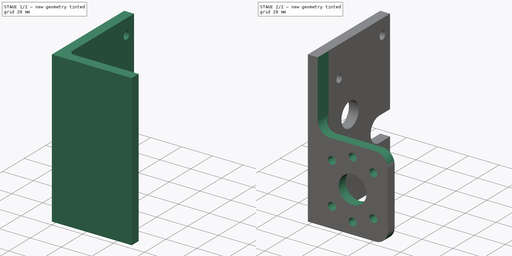
[diagram: build sequence overview — one tinted view per stage of 2, left to right]
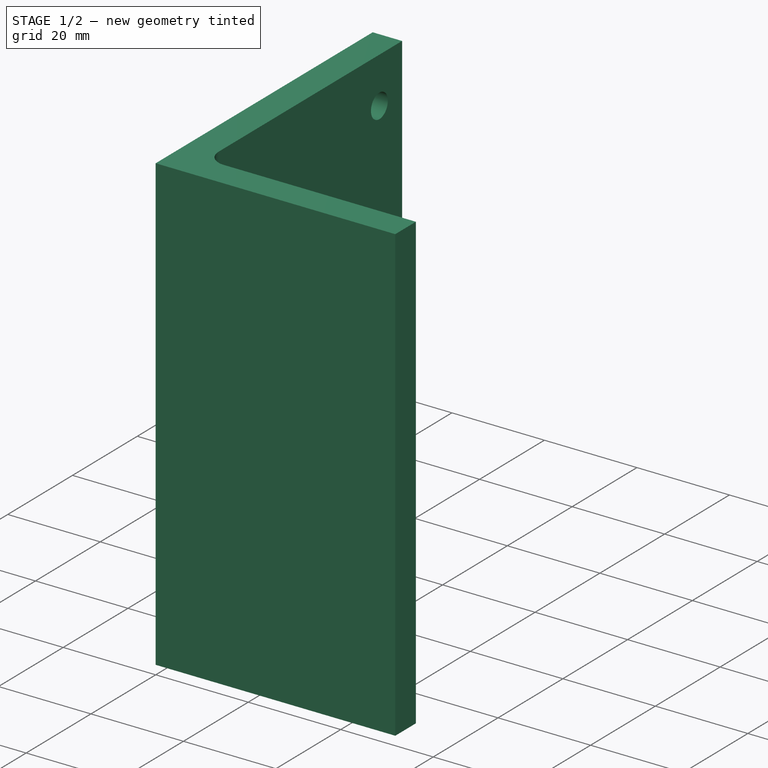
[diagram: stage 1 of 2 — iso view after this stage's code; geometry added in this stage tinted green]
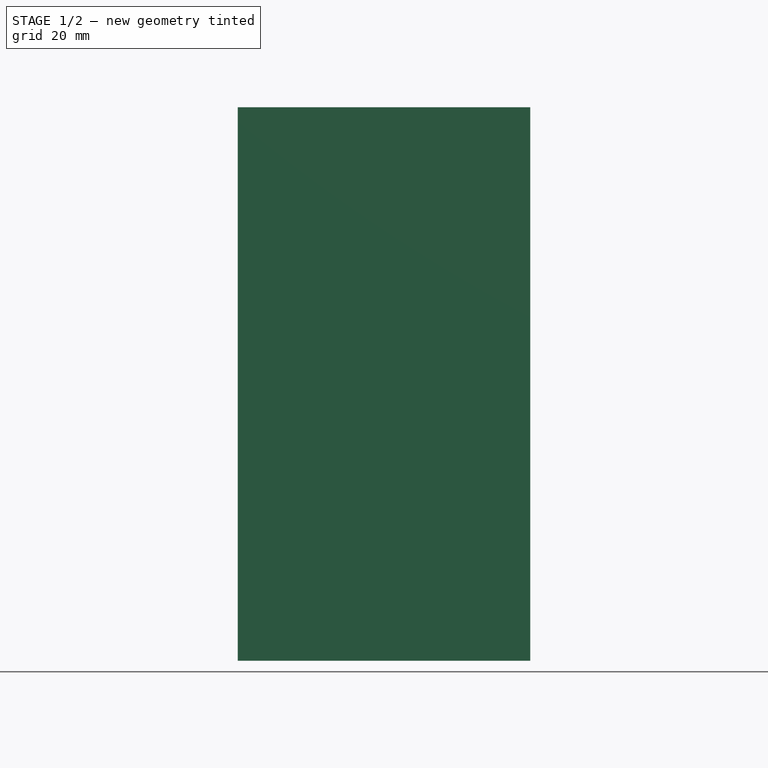
[diagram: stage 1 of 2 — front view after this stage's code; geometry added in this stage tinted green]
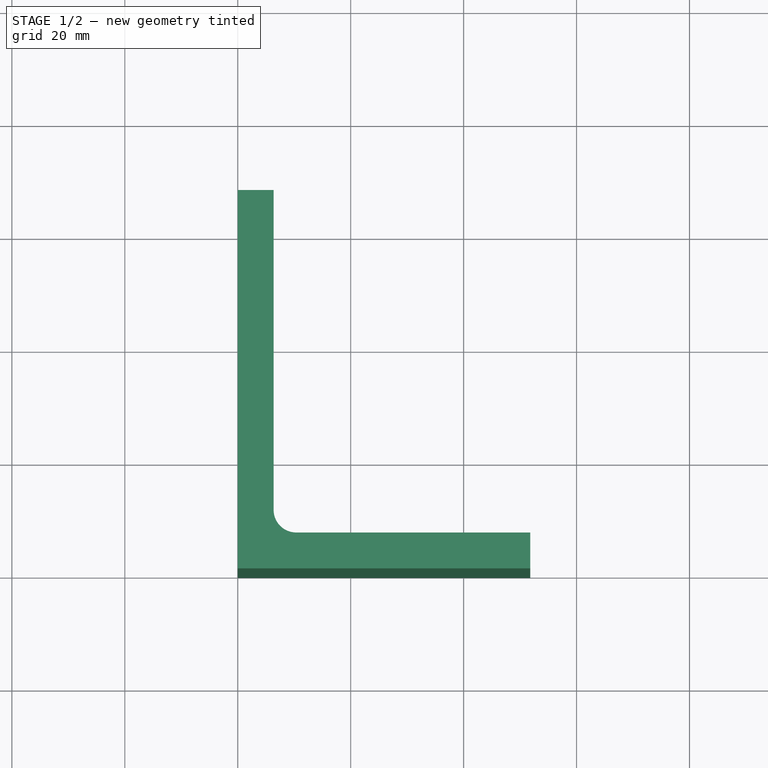
[diagram: stage 1 of 2 — top view after this stage's code; geometry added in this stage tinted green]
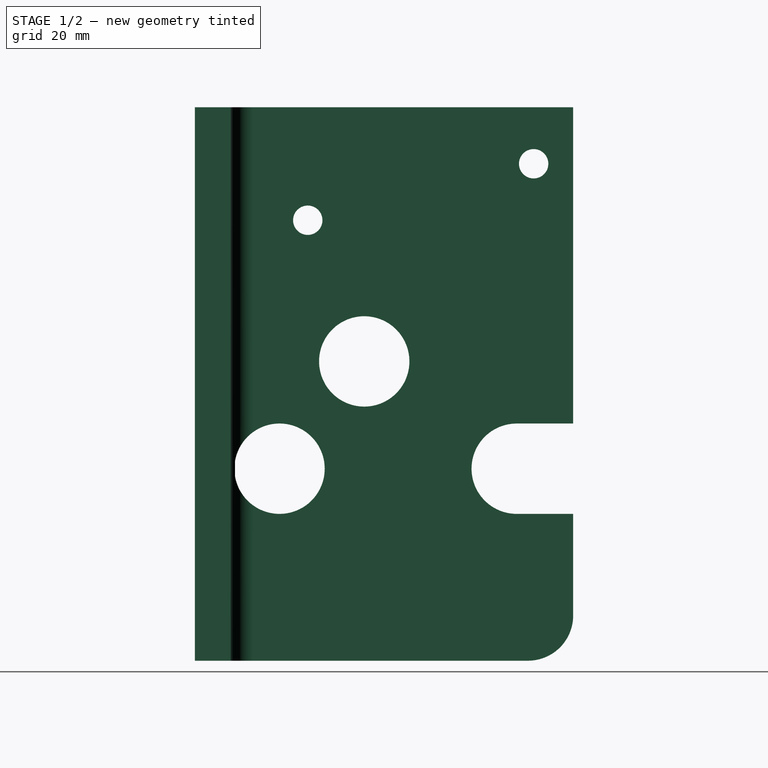
[diagram: stage 1 of 2 — right view after this stage's code; geometry added in this stage tinted green]
FCSTD DOCUMENT  (FreeCAD 0.16R6703 (Git))
Label: Worm-support-32-new
License: All rights reserved
LicenseURL: http://en.wikipedia.org/wiki/All_rights_reserved
objects: Sketcher::SketchObject×3, PartDesign::Pocket×2, PartDesign::Pad×1
note: 9 computed .brp shape members not serialized (recipe doc carries the construction recipe); baked Part::Feature solids carry a one-line shape summary decoded from their .brp

FEATURE [Sketcher::SketchObject] Sketch
  sketch-geometry (7):
    g0: LineSegment StartX=6.35 StartY=10.35 StartZ=0 EndX=6.35 EndY=67 EndZ=0
    g1: LineSegment StartX=6.35 StartY=67 StartZ=0 EndX=0 EndY=67 EndZ=0
    g2: LineSegment StartX=0 StartY=67 StartZ=0 EndX=0 EndY=0 EndZ=0
    g3: LineSegment StartX=0 StartY=0 StartZ=0 EndX=51.8 EndY=0 EndZ=0
    g4: LineSegment StartX=51.8 StartY=0 StartZ=0 EndX=51.8 EndY=6.35 EndZ=0
    g5: LineSegment StartX=51.8 StartY=6.35 StartZ=0 EndX=10.35 EndY=6.35 EndZ=0
    g6: ArcOfCircle CenterX=10.35 CenterY=10.35 CenterZ=0 NormalX=0 NormalY=0 NormalZ=1 Radius=4 StartAngle=3.14159 EndAngle=4.71239
  constraints (21):
    c: Vertical(g0)
    c: Coincident(g0,g1)
    c: Horizontal(g1)
    c: Coincident(g1,g2)
    c: Coincident(g2,g-1)
    c: Vertical(g2)
    c: Coincident(g2,g3)
    c: Horizontal(g3)
    c: Coincident(g3,g4)
    c: Vertical(g4)
    c: Coincident(g4,g5)
    c: Horizontal(g5)
    c: Coincident(g6,g5)
    c: Tangent(g6,g5)
    c: Coincident(g6,g0)
    c: Tangent(g6,g0)
    c: Radius(g6) = 4
    c: DistanceY(g4) = 6.35
    c: DistanceX(g3) = 51.8
    c: DistanceX(g1,g0) = 6.35
    c: DistanceY(g-1,g1) = 67
FEATURE [PartDesign::Pad] Pad001
  Length = 98
  Length2 = 100
  Sketch = -> Sketch
  Type = 0
FEATURE [Sketcher::SketchObject] Sketch001
  Placement = pos=(0,0,0) rot=(0.57735,-0.57735,-0.57735;2.0944rad)
  Support = -> Pad001 [Face3]
  sketch-geometry (11):
    g0: Circle CenterX=-60 CenterY=88 CenterZ=0 NormalX=0 NormalY=0 NormalZ=1 Radius=2.6
    g1: Circle CenterX=-20 CenterY=78 CenterZ=0 NormalX=0 NormalY=0 NormalZ=1 Radius=2.6
    g2: Circle CenterX=-30 CenterY=53 CenterZ=0 NormalX=0 NormalY=0 NormalZ=1 Radius=8
    g3: Circle CenterX=-15 CenterY=34 CenterZ=0 NormalX=0 NormalY=0 NormalZ=1 Radius=8
    g4: LineSegment StartX=-68 StartY=0 StartZ=0 EndX=-68 EndY=42 EndZ=0
    g5: LineSegment StartX=-68 StartY=42 StartZ=0 EndX=-57 EndY=42 EndZ=0
    g6: ArcOfCircle CenterX=-57 CenterY=34 CenterZ=0 NormalX=0 NormalY=0 NormalZ=1 Radius=8 StartAngle=4.71239 EndAngle=7.85398
    g7: ArcOfCircle CenterX=-59 CenterY=8 CenterZ=0 NormalX=0 NormalY=0 NormalZ=1 Radius=8 StartAngle=3.14159 EndAngle=4.71239
    g8: LineSegment StartX=-67 StartY=26 StartZ=0 EndX=-57 EndY=26 EndZ=0
    g9: LineSegment StartX=-67 StartY=26 StartZ=0 EndX=-67 EndY=7.99999 EndZ=0
    g10: LineSegment StartX=-68 StartY=0 StartZ=0 EndX=-59 EndY=0 EndZ=0
  constraints (35):
    c: Radius(g2) = 8
    c: DistanceX(g0,g1) = 40
    c: Equal(g1,g0)
    c: Radius(g0) = 2.6
    c: DistanceX(g-1,g1) = -20
    c: DistanceY(g-1,g1) = 78
    c: DistanceY(g-1,g0) = 88
    c: Radius(g3) = 8
    c: DistanceX(g-1,g3) = -15
    c: DistanceY(g-1,g2) = 53
    c: DistanceX(g-1,g2) = -30
    c: DistanceY(g-1,g3) = 34
    c: Vertical(g4)
    c: Coincident(g4,g5)
    c: Horizontal(g5)
    c: Coincident(g5,g6)
    c: Tangent(g5,g6)
    c: Radius(g6) = 8
    c: DistanceX(g3,g6) = -42
    c: DistanceX(g-1,g4) = -68
    c: DistanceY(g-1,g6) = 34
    c: Angle(g6) = 3.14159
    c: PointOnObject(g7,g-1)
    c: Horizontal(g8)
    c: DistanceX(g7,g-1) = 67
    c: Angle(g7) = 1.5708
    c: Coincident(g8,g6)
    c: Radius(g7) = 8
    c: Vertical(g9)
    c: Horizontal(g10)
    c: Coincident(g10,g7)
    c: Coincident(g10,g4)
    c: Coincident(g9,g7)
    c: Tangent(g7,g9)
    c: Coincident(g9,g8)
FEATURE [PartDesign::Pocket] Pocket
  Length = 8
  Sketch = -> Sketch001
  Type = 0
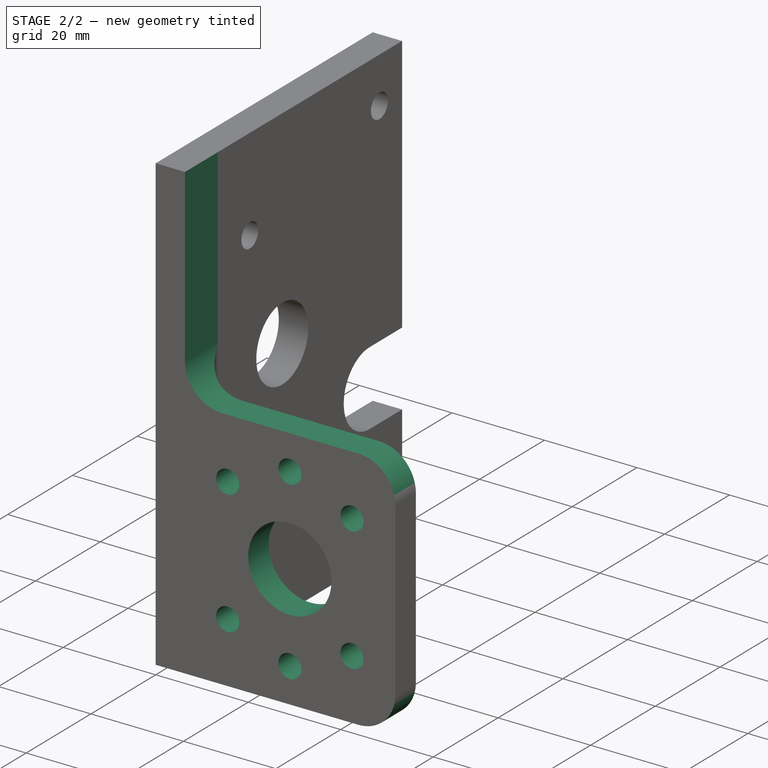
[diagram: stage 2 of 2 — iso view after this stage's code; geometry added in this stage tinted green]
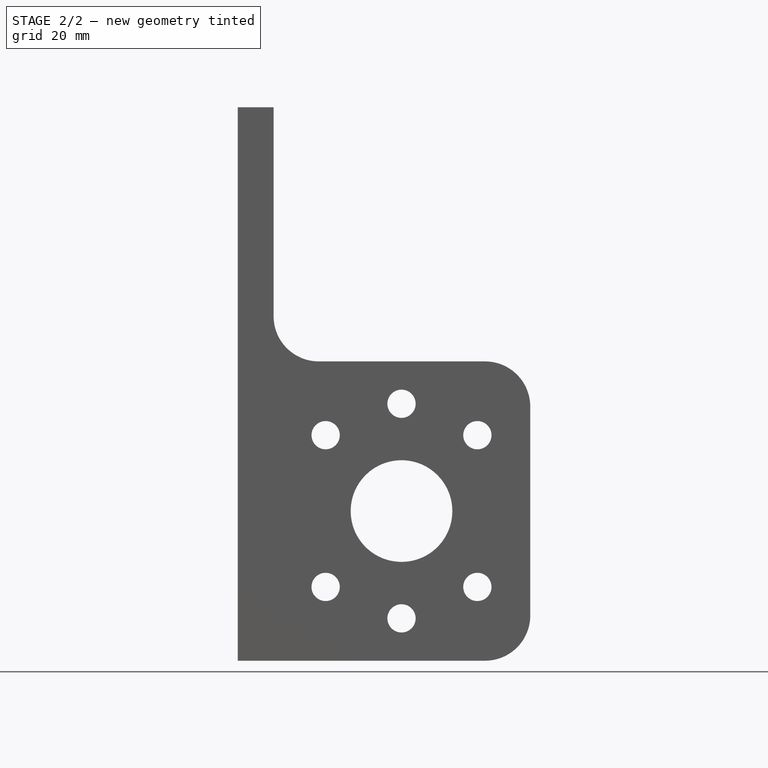
[diagram: stage 2 of 2 — front view after this stage's code; geometry added in this stage tinted green]
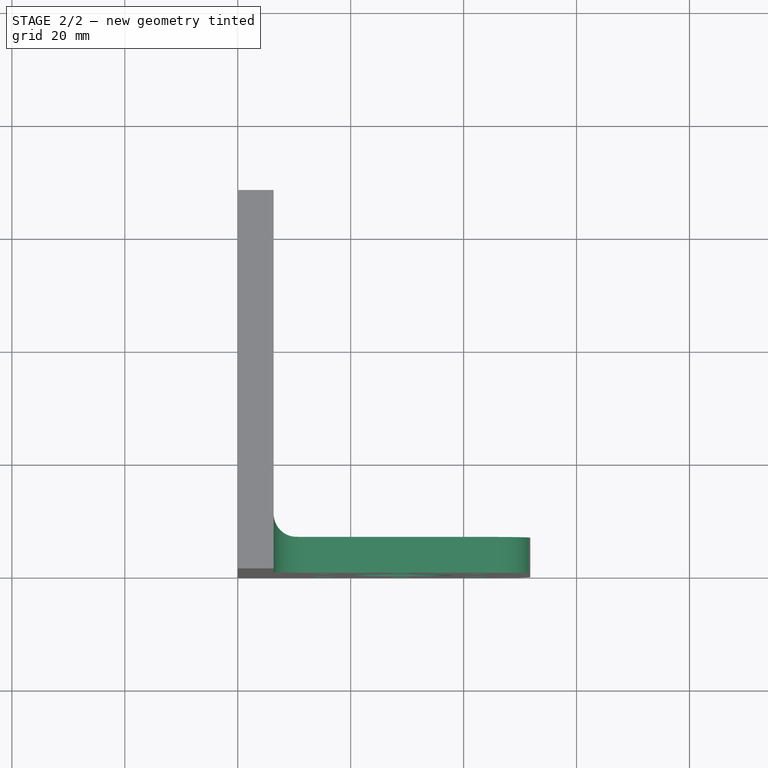
[diagram: stage 2 of 2 — top view after this stage's code; geometry added in this stage tinted green]
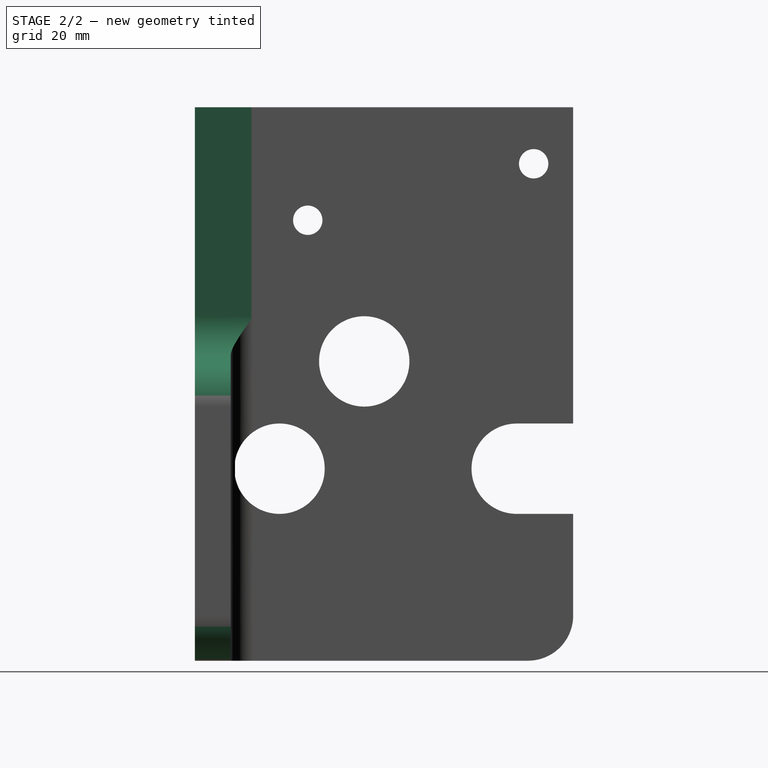
[diagram: stage 2 of 2 — right view after this stage's code; geometry added in this stage tinted green]
FEATURE [Sketcher::SketchObject] Sketch002
  Placement = pos=(0,0,0) rot=(1,0,0;1.5708rad)
  Support = -> Pocket [Face16]
  sketch-geometry (21):
    g0: Circle [constr] CenterX=29 CenterY=26.5 CenterZ=0 NormalX=0 NormalY=0 NormalZ=1 Radius=19
    g1: Circle CenterX=29 CenterY=26.5 CenterZ=0 NormalX=0 NormalY=0 NormalZ=1 Radius=9
    g2: LineSegment [constr] StartX=0 StartY=55.5 StartZ=0 EndX=37.4767 EndY=18.0233 EndZ=0
    g3: LineSegment [constr] StartX=2.5 StartY=0 StartZ=0 EndX=39.9767 EndY=37.4767 EndZ=0
    g4: LineSegment [constr] StartX=29 StartY=0 StartZ=0 EndX=29 EndY=53 EndZ=0
    g5: Circle CenterX=15.565 CenterY=39.935 CenterZ=0 NormalX=0 NormalY=0 NormalZ=1 Radius=2.5
    g6: Circle CenterX=29 CenterY=45.5 CenterZ=0 NormalX=0 NormalY=0 NormalZ=1 Radius=2.5
    g7: Circle CenterX=42.435 CenterY=39.935 CenterZ=0 NormalX=0 NormalY=0 NormalZ=1 Radius=2.5
    g8: Circle CenterX=15.565 CenterY=13.065 CenterZ=0 NormalX=0 NormalY=0 NormalZ=1 Radius=2.5
    g9: Circle CenterX=29 CenterY=7.5 CenterZ=0 NormalX=0 NormalY=0 NormalZ=1 Radius=2.5
    g10: Circle CenterX=42.435 CenterY=13.065 CenterZ=0 NormalX=0 NormalY=0 NormalZ=1 Radius=2.5
    g11: LineSegment StartX=6.35 StartY=61 StartZ=0 EndX=6.35 EndY=98 EndZ=0
    g12: LineSegment StartX=6.35 StartY=98 StartZ=0 EndX=51.8 EndY=98 EndZ=0
    g13: LineSegment StartX=51.8 StartY=98 StartZ=0 EndX=51.8 EndY=45 EndZ=0
    g14: LineSegment StartX=43.8 StartY=53 StartZ=0 EndX=14.35 EndY=53 EndZ=0
    g15: ArcOfCircle CenterX=14.35 CenterY=61 CenterZ=0 NormalX=0 NormalY=0 NormalZ=1 Radius=8 StartAngle=3.14159 EndAngle=4.71239
    g16: ArcOfCircle CenterX=43.8 CenterY=45 CenterZ=0 NormalX=0 NormalY=0 NormalZ=1 Radius=8 StartAngle=6.28319 EndAngle=7.85398
    g17: ArcOfCircle CenterX=43.8 CenterY=8 CenterZ=0 NormalX=0 NormalY=0 NormalZ=1 Radius=8 StartAngle=4.71239 EndAngle=6.28319
    g18: LineSegment StartX=51.8 StartY=8 StartZ=0 EndX=51.8 EndY=0 EndZ=0
    g19: LineSegment StartX=43.8 StartY=0 StartZ=0 EndX=51.8 EndY=0 EndZ=0
    g20: LineSegment StartX=1.5 StartY=0 StartZ=0 EndX=0 EndY=0 EndZ=0
  constraints (67):
    c: Coincident(g0,g1)
    c: Radius(g1) = 9
    c: Radius(g0) = 19
    c: DistanceX(g-1,g0) = 29
    c: DistanceY(g-1,g0) = 26.5
    c: Vertical(g4)
    c: Angle(g4,g2) = 0.785398
    c: Angle(g3,g4) = 0.785398
    c: PointOnObject(g4,g-1)
    c: PointOnObject(g0,g4)
    c: PointOnObject(g0,g2)
    c: PointOnObject(g2,g-2)
    c: PointOnObject(g0,g3)
    c: PointOnObject(g3,g-1)
    c: Equal(g2,g3)
    c: Equal(g3,g4)
    c: DistanceY(g4) = 53
    c: PointOnObject(g10,g0)
    c: PointOnObject(g10,g2)
    c: PointOnObject(g7,g0)
    c: PointOnObject(g7,g3)
    c: PointOnObject(g9,g0)
    c: PointOnObject(g9,g4)
    c: Equal(g5,g6)
    c: Equal(g6,g7)
    c: Equal(g7,g10)
    c: Equal(g10,g9)
    c: Equal(g9,g8)
    c: Radius(g7) = 2.5
    c: PointOnObject(g6,g4)
    c: PointOnObject(g6,g0)
    c: PointOnObject(g5,g2)
    c: PointOnObject(g5,g0)
    c: PointOnObject(g8,g3)
    c: PointOnObject(g8,g0)
    c: Vertical(g11)
    c: Coincident(g11,g12)
    c: Horizontal(g12)
    c: Coincident(g12,g13)
    c: Vertical(g13)
    c: Horizontal(g14)
    c: DistanceX(g-1,g11) = 6.35
    c: DistanceY(g-1,g11) = 98
    c: DistanceX(g-1,g12) = 51.8
    c: Coincident(g15,g14)
    c: Tangent(g15,g14)
    c: Coincident(g15,g11)
    c: Tangent(g15,g11)
    c: Radius(g15) = 8
    c: Coincident(g16,g14)
    c: Coincident(g16,g13)
    c: Tangent(g14,g16)
    c: Radius(g16) = 8
    c: Angle(g16) = 1.5708
    c: Vertical(g18)
    c: Horizontal(g19)
    c: Coincident(g19,g17)
    c: Coincident(g17,g18)
    c: Radius(g17) = 8
    c: Angle(g17) = 1.5708
    c: Coincident(g18,g19)
    c: PointOnObject(g18,g-1)
    c: Equal(g19,g18)
    c: DistanceX(g-1,g18) = 51.8
    c: Horizontal(g20)
    c: Coincident(g20,g-1)
    c: PointOnObject(g4,g14)
FEATURE [PartDesign::Pocket] Pocket001
  Length = 10
  Sketch = -> Sketch002
  Type = 0
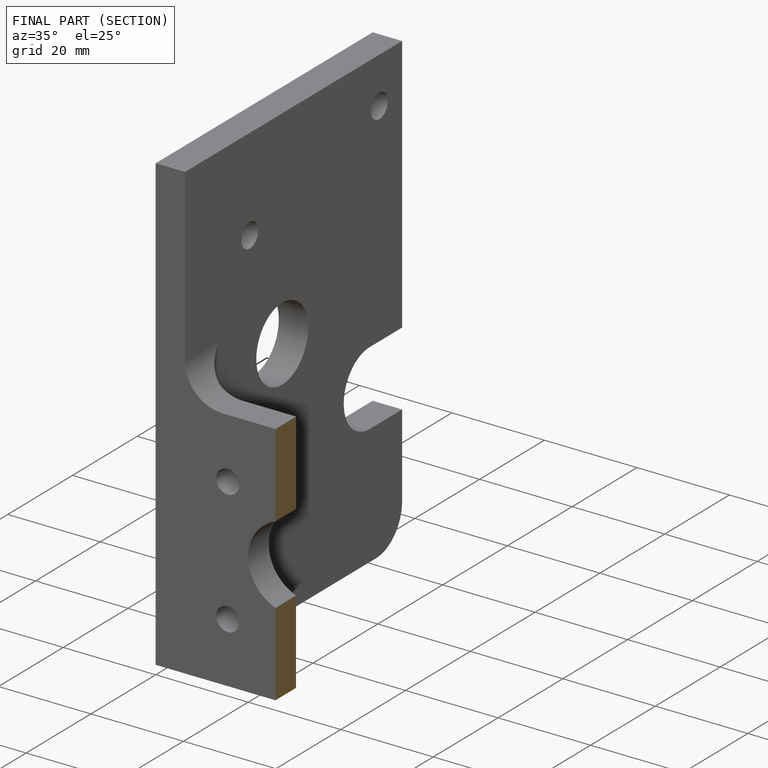
[diagram: finished part — half-section view (interior)]
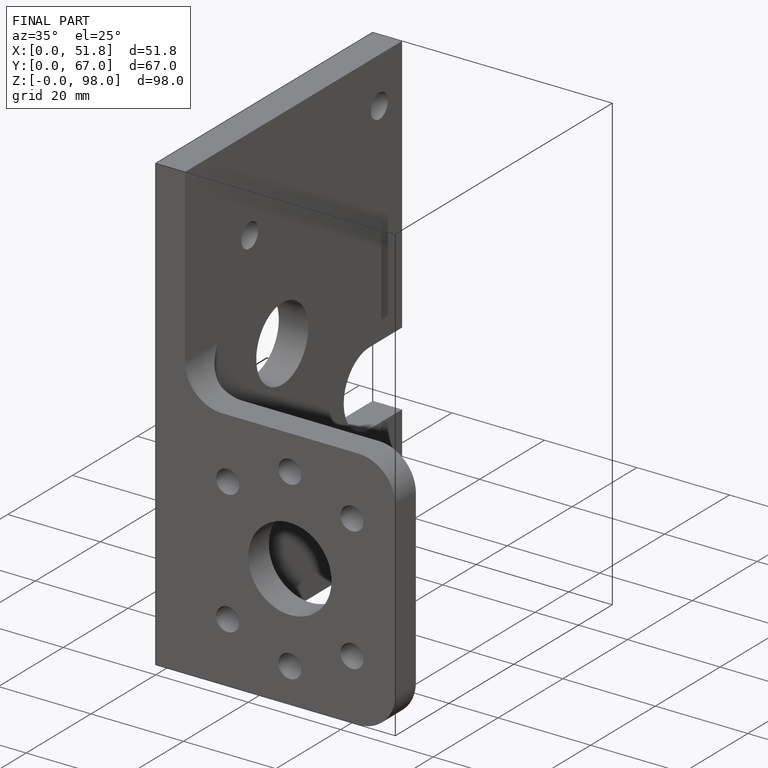
[diagram: finished part — iso view with bounding-box wireframe]
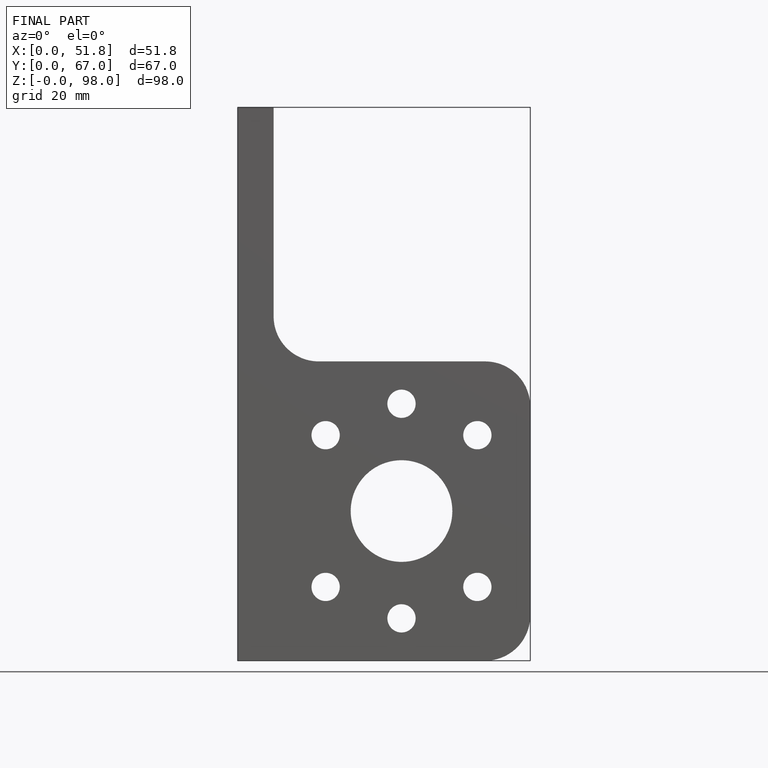
[diagram: finished part — front view with bounding-box wireframe]
